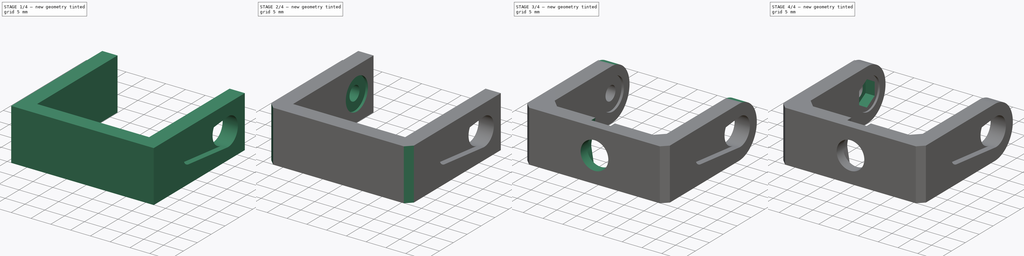
[diagram: build sequence overview — one tinted view per stage of 4, left to right]
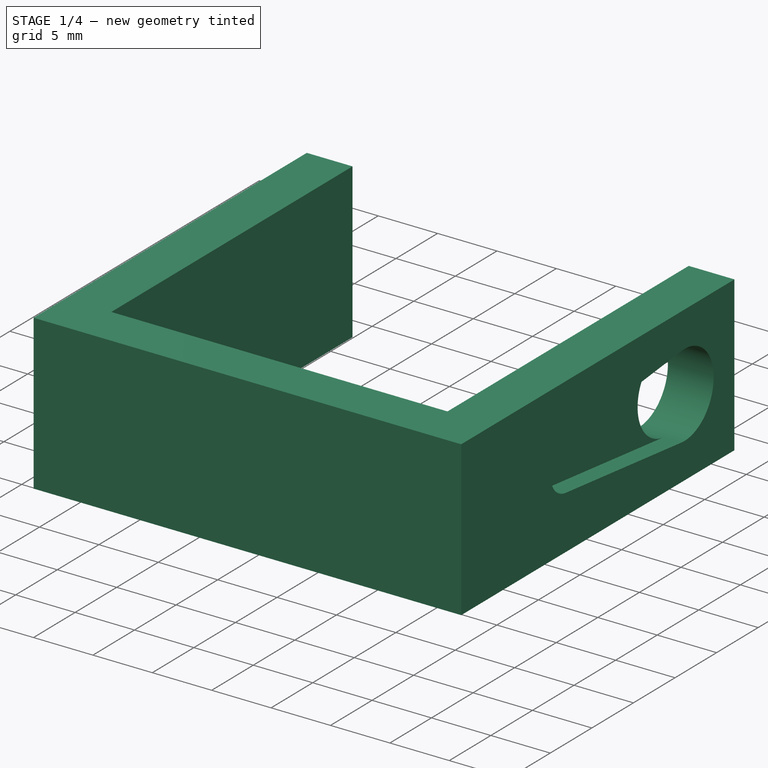
[diagram: stage 1 of 4 — iso view after this stage's code; geometry added in this stage tinted green]
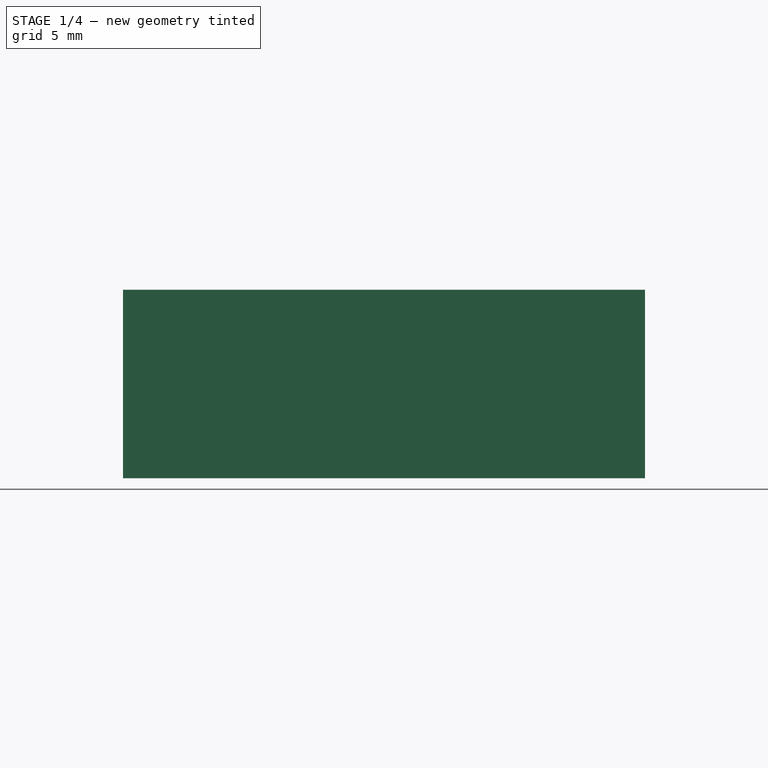
[diagram: stage 1 of 4 — front view after this stage's code; geometry added in this stage tinted green]
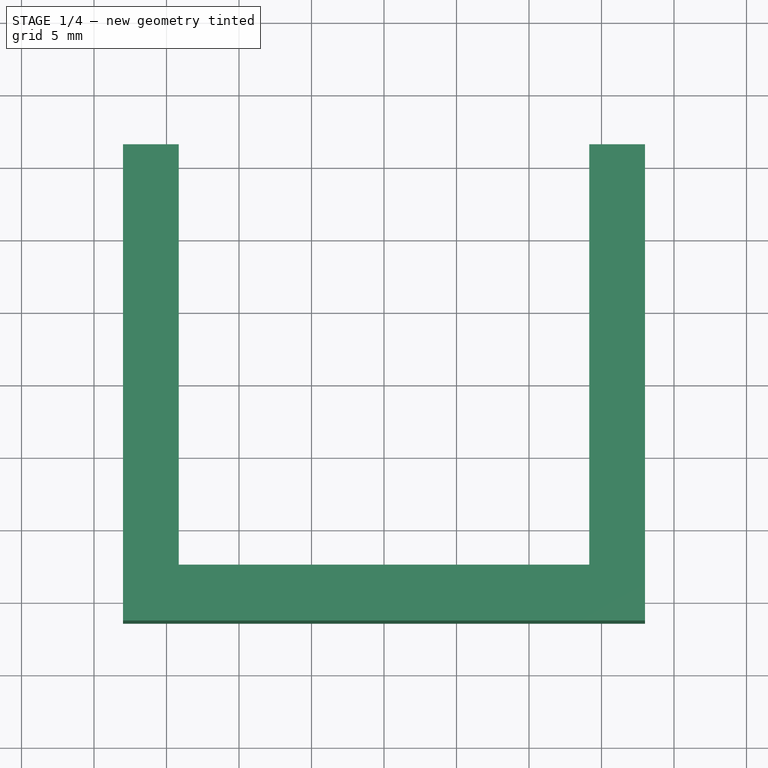
[diagram: stage 1 of 4 — top view after this stage's code; geometry added in this stage tinted green]
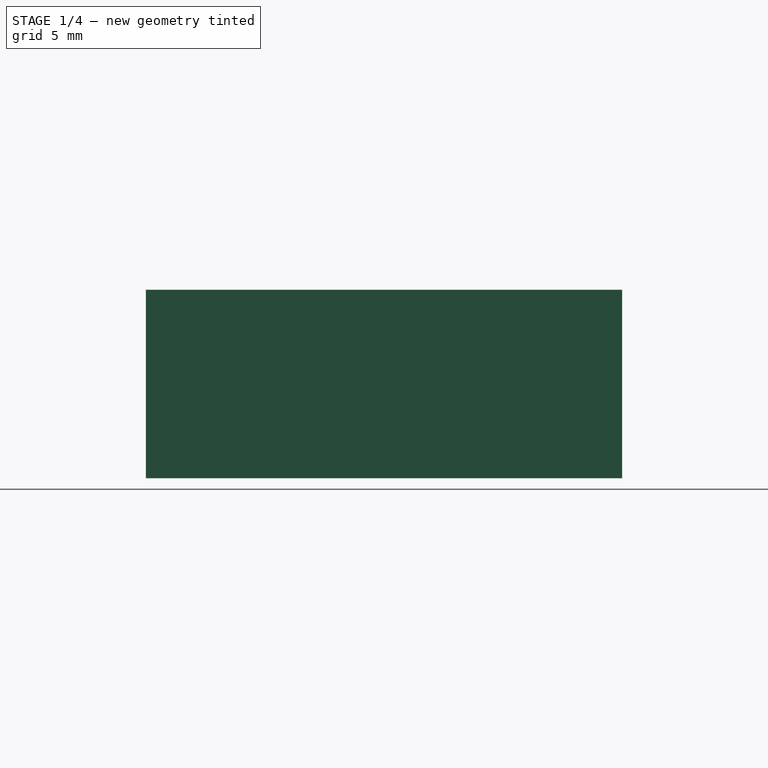
[diagram: stage 1 of 4 — right view after this stage's code; geometry added in this stage tinted green]
FCSTD DOCUMENT  (FreeCAD 0.21R33771 (Git))
Label: junta-s9g-180
License: All rights reserved
LicenseURL: https://en.wikipedia.org/wiki/All_rights_reserved
objects: Sketcher::SketchObject×8, PartDesign::Pocket×8, PartDesign::Pad×2, PartDesign::Chamfer×2, PartDesign::Fillet×1, PartDesign::Body×1
note: 35 computed .brp shape members not serialized (recipe doc carries the construction recipe); baked Part::Feature solids carry a one-line shape summary decoded from their .brp

FEATURE [Sketcher::SketchObject] Sketch
  FullyConstrained = true
  MapMode = 5
  Support = -> [XY_Plane]
  sketch-geometry (9):
    g0: LineSegment StartX=-14.15 StartY=16.425 StartZ=0 EndX=-18 EndY=16.425 EndZ=0
    g1: LineSegment StartX=-18 StartY=16.425 StartZ=0 EndX=-18 EndY=-16.425 EndZ=0
    g2: LineSegment StartX=-18 StartY=-16.425 StartZ=0 EndX=18 EndY=-16.425 EndZ=0
    g3: LineSegment StartX=18 StartY=-16.425 StartZ=0 EndX=18 EndY=16.425 EndZ=0
    g4: LineSegment StartX=18 StartY=16.425 StartZ=0 EndX=14.15 EndY=16.425 EndZ=0
    g5: LineSegment StartX=14.15 StartY=16.425 StartZ=0 EndX=14.15 EndY=-12.575 EndZ=0
    g6: LineSegment StartX=14.15 StartY=-12.575 StartZ=0 EndX=-14.15 EndY=-12.575 EndZ=0
    g7: LineSegment StartX=-14.15 StartY=-12.575 StartZ=0 EndX=-14.15 EndY=16.425 EndZ=0
    g8: LineSegment StartX=-14.15 StartY=-12.575 StartZ=0 EndX=-14.15 EndY=-16.425 EndZ=0
  constraints (25):
    c: Horizontal(g0)
    c: Coincident(g0,g1)
    c: Coincident(g1,g2)
    c: Coincident(g2,g3)
    c: Vertical(g3)
    c: Coincident(g3,g4)
    c: Horizontal(g4)
    c: Coincident(g4,g5)
    c: Vertical(g5)
    c: Coincident(g5,g6)
    c: Horizontal(g6)
    c: Coincident(g6,g7)
    c: Coincident(g7,g0)
    c: Vertical(g7)
    c: Symmetric(g1,g2,g-2)
    c: Symmetric(g0,g1,g-1)
    c: Equal(g5,g7)
    c: Equal(g0,g4)
    c: Coincident(g8,g6)
    c: PointOnObject(g8,g2)
    c: Vertical(g8)
    c: Equal(g8,g0)
    c: DistanceX(g0,g0) = 3.85
    c: DistanceY(g5,g5) = 29
    c: DistanceX(g0,g4) = 28.3
FEATURE [PartDesign::Pad] Pad
  Direction = (0,0,1)
  Length = 13
  Length2 = 10
  Profile = -> Sketch
  ReferenceAxis = -> Sketch [N_Axis]
  Type = 0
FEATURE [Sketcher::SketchObject] Sketch001
  ExternalGeometry = -> [Pad]
  FullyConstrained = false
  MapMode = 5
  Placement = pos=(18,0,0) rot=(0.57735,0.57735,0.57735;2.0944rad)
  Support = -> [Pad]
  sketch-geometry (9):
    g0: LineSegment StartX=-16.425 StartY=6.5 StartZ=0 EndX=16.425 EndY=6.5 EndZ=0
    g1: ArcOfCircle CenterX=-3.675 CenterY=6.5 CenterZ=0 NormalX=0 NormalY=0 NormalZ=1 AngleXU=0 Radius=2 StartAngle=1.67738 EndAngle=4.6058
    g2: ArcOfCircle CenterX=10.425 CenterY=6.5 CenterZ=0 NormalX=0 NormalY=0 NormalZ=1 AngleXU=0 Radius=3.5 StartAngle=4.6058 EndAngle=7.96057
    g3: LineSegment StartX=-3.88777 StartY=4.51135 StartZ=0 EndX=10.0527 EndY=3.01986 EndZ=0
    g4: LineSegment StartX=10.0527 StartY=9.98014 StartZ=0 EndX=-3.88777 EndY=8.48865 EndZ=0
    g5: LineSegment StartX=-5.675 StartY=10 StartZ=0 EndX=13.925 EndY=10 EndZ=0
    g6: LineSegment StartX=13.925 StartY=10 StartZ=0 EndX=13.925 EndY=3.0031 EndZ=0
    g7: LineSegment StartX=13.925 StartY=3.0031 StartZ=0 EndX=-5.675 EndY=2.98574 EndZ=0
    g8: LineSegment StartX=-5.675 StartY=2.98574 StartZ=0 EndX=-5.675 EndY=10 EndZ=0
  constraints (24):
    c: Symmetric(g-3,g-3,g0)
    c: PointOnObject(g0,g-3)
    c: PointOnObject(g0,g-4)
    c: PointOnObject(g2,g0)
    c: PointOnObject(g1,g0)
    c: Radius(g1) = 2
    c: Tangent(g3,g2) = -1.5708
    c: Tangent(g4,g2) = -1.5708
    c: Radius(g2) = 3.5
    c: Coincident(g5,g6)
    c: Coincident(g6,g7)
    c: Coincident(g7,g8)
    c: Coincident(g8,g5)
    c: Horizontal(g5)
    c: Vertical(g6)
    c: Vertical(g8)
    c: Tangent(g6,g2)
    c: Tangent(g1,g8)
    c: DistanceX(g5,g5) = 19.6
    c: Tangent(g3,g1) = -1.5708
    c: Tangent(g1,g4) = -1.5708
    c: Tangent(g5,g2)
    c: Tangent(g7,g2)
    c: DistanceX(g5,g-5) = 2.5
FEATURE [PartDesign::Pocket] Pocket
  BaseFeature = -> Pad
  Direction = (-1,0,0)
  Length = 1.5
  Length2 = 5
  Profile = -> Sketch001
  ReferenceAxis = -> Sketch001 [N_Axis]
  Type = 0
FEATURE [Sketcher::SketchObject] Sketch002
  ExternalGeometry = -> [Pocket]
  FullyConstrained = true
  MapMode = 5
  Placement = pos=(16.5,0,0) rot=(0.57735,0.57735,0.57735;2.0944rad)
  Support = -> [Pocket]
  sketch-geometry (1):
    g0: Circle CenterX=10.425 CenterY=6.5 CenterZ=0 NormalX=0 NormalY=0 NormalZ=1 AngleXU=0 Radius=3.5
  constraints (2):
    c: Coincident(g0,g-3)
    c: Equal(g-3,g0)
FEATURE [PartDesign::Pocket] Pocket001
  BaseFeature = -> Pocket
  Direction = (-1,0,0)
  Length = 0
  Length2 = 5
  Profile = -> Sketch002
  ReferenceAxis = -> Sketch002 [N_Axis]
  Type = 3
  UpToFace = -> Pocket [Face10]
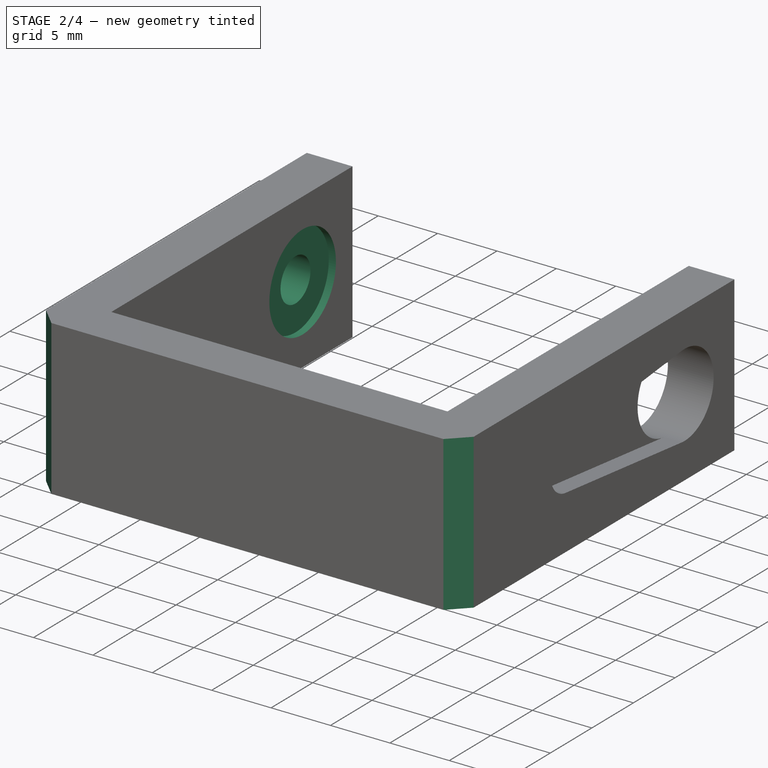
[diagram: stage 2 of 4 — iso view after this stage's code; geometry added in this stage tinted green]
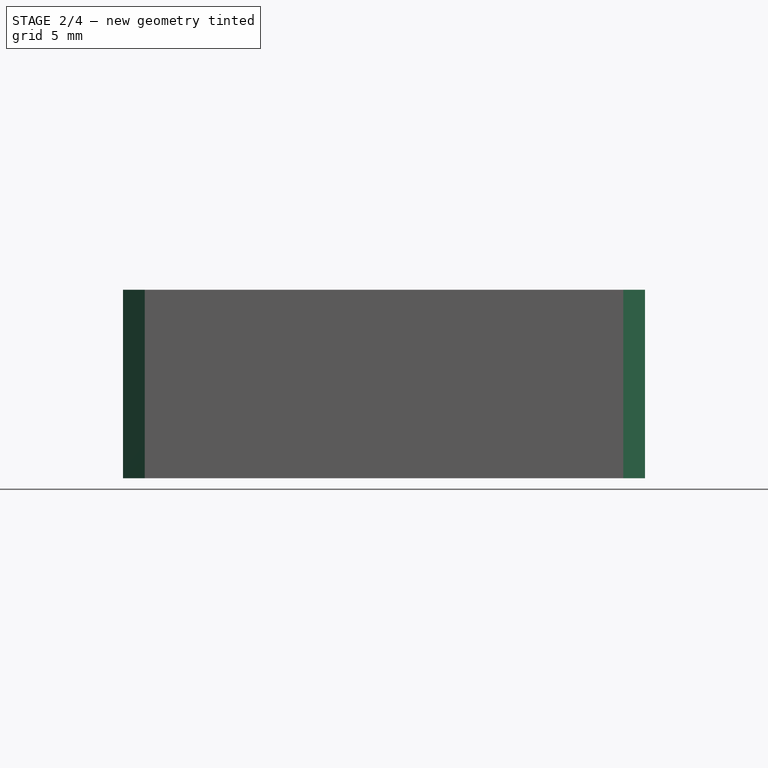
[diagram: stage 2 of 4 — front view after this stage's code; geometry added in this stage tinted green]
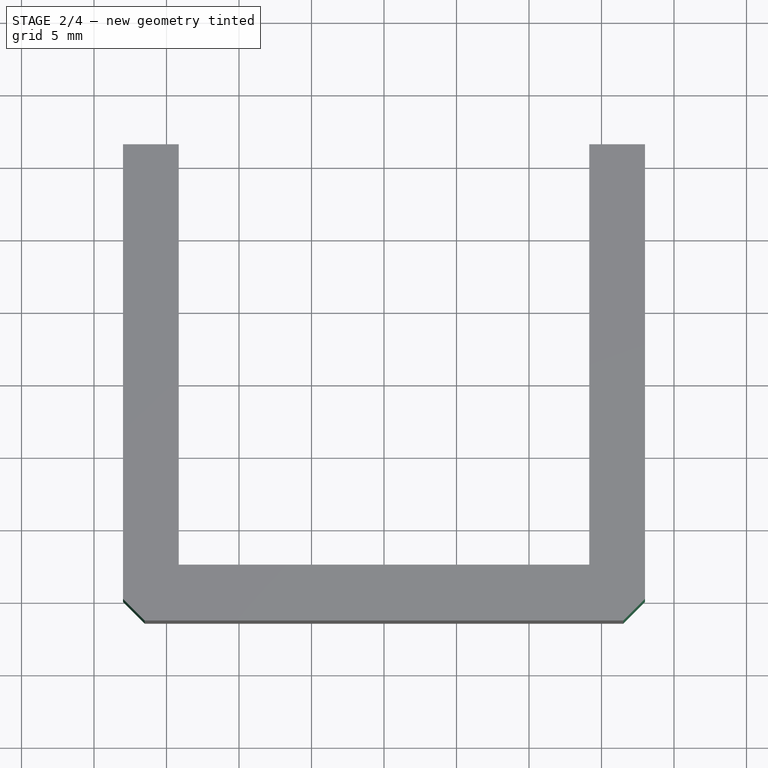
[diagram: stage 2 of 4 — top view after this stage's code; geometry added in this stage tinted green]
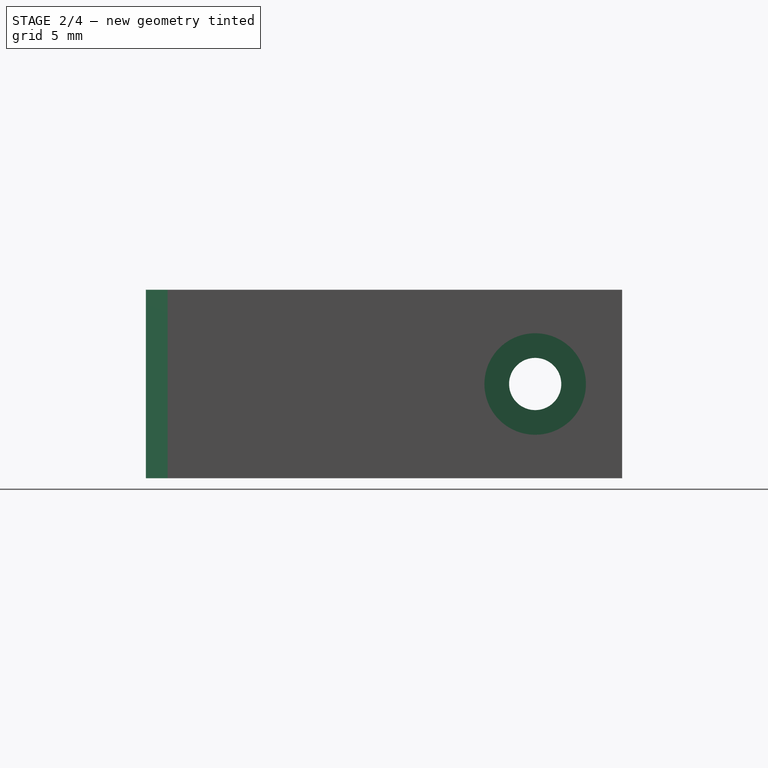
[diagram: stage 2 of 4 — right view after this stage's code; geometry added in this stage tinted green]
FEATURE [Sketcher::SketchObject] Sketch003
  ExternalGeometry = -> [Pocket001]
  FullyConstrained = true
  MapMode = 5
  Placement = pos=(-14.15,0,0) rot=(0.57735,0.57735,0.57735;2.0944rad)
  Support = -> [Pocket001]
  sketch-geometry (1):
    g0: Circle CenterX=10.425 CenterY=6.5 CenterZ=0 NormalX=0 NormalY=0 NormalZ=1 AngleXU=0 Radius=4
  constraints (2):
    c: Coincident(g0,g-3)
    c: Diameter(g0) = 8
FEATURE [PartDesign::Pocket] Pocket002
  BaseFeature = -> Pocket001
  Direction = (-1,0,0)
  Length = 0.6
  Length2 = 5
  Profile = -> Sketch003
  ReferenceAxis = -> Sketch003 [N_Axis]
  Type = 0
FEATURE [Sketcher::SketchObject] Sketch004
  ExternalGeometry = -> [Pocket002]
  FullyConstrained = true
  MapMode = 5
  Placement = pos=(-14.75,0,0) rot=(0.57735,0.57735,0.57735;2.0944rad)
  Support = -> [Pocket002]
  sketch-geometry (1):
    g0: Circle CenterX=10.425 CenterY=6.5 CenterZ=0 NormalX=0 NormalY=0 NormalZ=1 AngleXU=0 Radius=1.8
  constraints (2):
    c: Coincident(g0,g-3)
    c: Diameter(g0) = 3.6
FEATURE [PartDesign::Pocket] Pocket003
  BaseFeature = -> Pocket002
  Direction = (-1,0,0)
  Length = 5
  Length2 = 5
  Profile = -> Sketch004
  ReferenceAxis = -> Sketch004 [N_Axis]
  Type = 1
FEATURE [PartDesign::Chamfer] Chamfer
  Angle = 45
  Base = -> Pocket003 [Edge26,Edge11]
  BaseFeature = -> Pocket003
  ChamferType = 0
  FlipDirection = false
  Size = 1.5
  Size2 = 1
  SupportTransform = false
  UseAllEdges = false
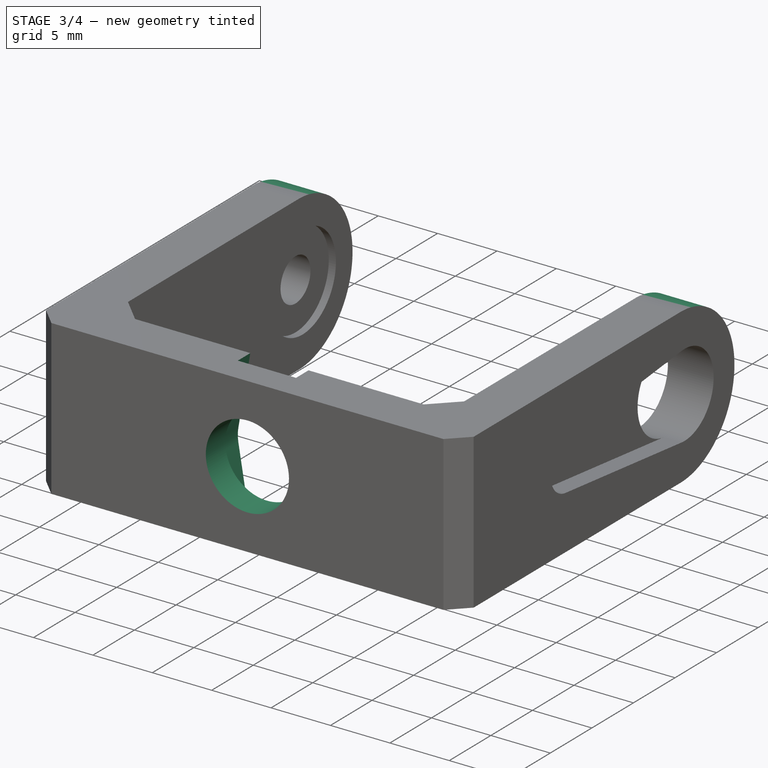
[diagram: stage 3 of 4 — iso view after this stage's code; geometry added in this stage tinted green]
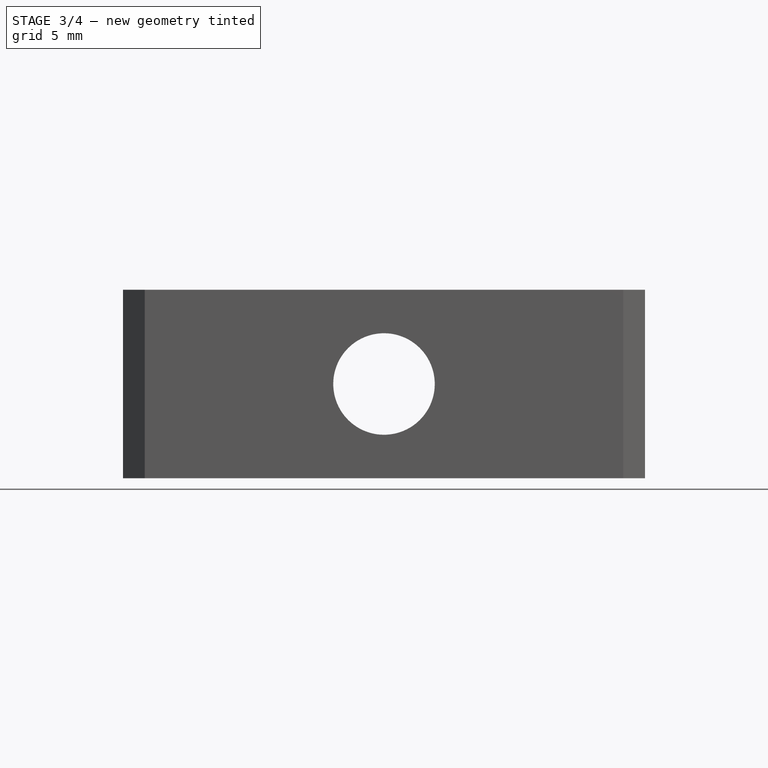
[diagram: stage 3 of 4 — front view after this stage's code; geometry added in this stage tinted green]
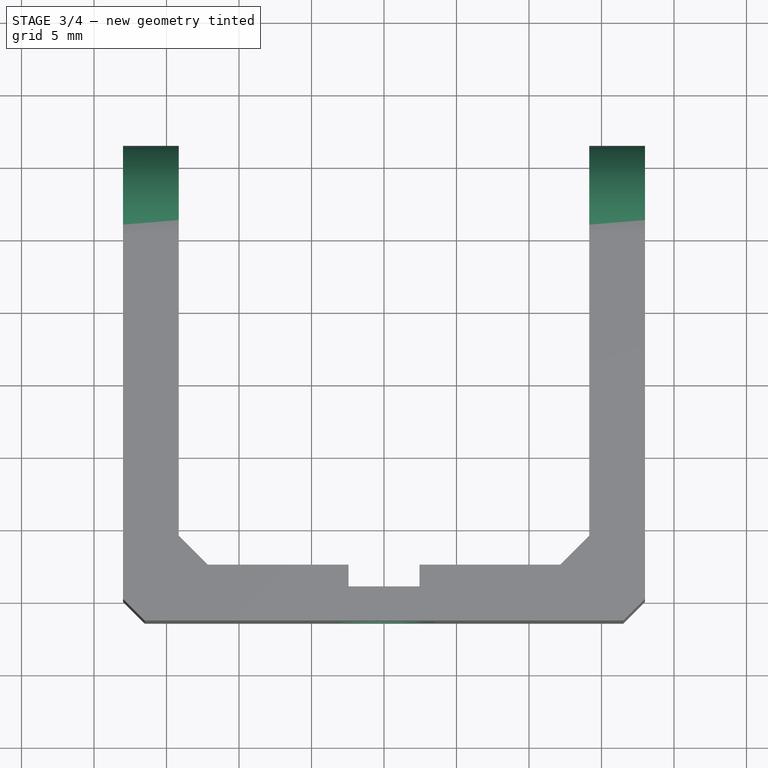
[diagram: stage 3 of 4 — top view after this stage's code; geometry added in this stage tinted green]
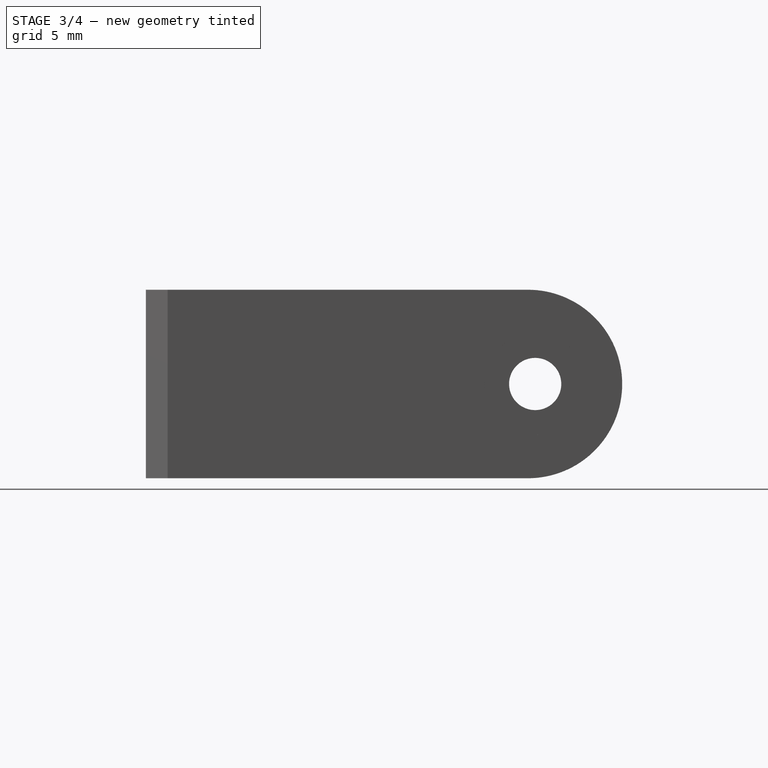
[diagram: stage 3 of 4 — right view after this stage's code; geometry added in this stage tinted green]
FEATURE [PartDesign::Chamfer] Chamfer001
  Angle = 45
  Base = -> Chamfer [Edge29,Edge32]
  BaseFeature = -> Chamfer
  ChamferType = 0
  FlipDirection = false
  Size = 2
  Size2 = 1
  SupportTransform = false
  UseAllEdges = false
FEATURE [PartDesign::Fillet] Fillet
  Base = -> Chamfer001 [Edge10,Edge36,Edge20,Edge3]
  BaseFeature = -> Chamfer001
  Radius = 6.499
  SupportTransform = false
  UseAllEdges = false
FEATURE [Sketcher::SketchObject] Sketch005
  ExternalGeometry = -> [Fillet]
  FullyConstrained = true
  MapMode = 5
  Placement = pos=(0,-12.575,0) rot=(0,0.707107,0.707107;3.14159rad)
  Support = -> [Fillet]
  sketch-geometry (18):
    g0: Circle CenterX=0 CenterY=6.5 CenterZ=0 NormalX=0 NormalY=0 NormalZ=1 AngleXU=0 Radius=3.5
    g1: LineSegment StartX=0.986013 StartY=-8.66667 StartZ=0 EndX=3.45105 EndY=5.91667 EndZ=0
    g2: LineSegment StartX=-3.45105 StartY=5.91667 StartZ=0 EndX=-0.986014 EndY=-8.66666 EndZ=0
    g3: LineSegment StartX=0.986013 StartY=21.6667 StartZ=0 EndX=3.45105 EndY=7.08333 EndZ=0
    g4: LineSegment StartX=-0.986013 StartY=21.6667 StartZ=0 EndX=-3.45105 EndY=7.08333 EndZ=0
    g5: ArcOfCircle CenterX=0 CenterY=21.5 CenterZ=0 NormalX=0 NormalY=0 NormalZ=1 AngleXU=0 Radius=1 StartAngle=0.167447 EndAngle=2.97414
    g6: ArcOfCircle CenterX=0 CenterY=-8.5 CenterZ=0 NormalX=0 NormalY=0 NormalZ=1 AngleXU=0 Radius=1 StartAngle=3.30904 EndAngle=6.11574
    g7: ArcOfCircle CenterX=-1e-16 CenterY=6.5 CenterZ=0 NormalX=0 NormalY=0 NormalZ=1 AngleXU=0 Radius=3.5 StartAngle=6.11574 EndAngle=6.45063
    g8: ArcOfCircle CenterX=2e-16 CenterY=6.5 CenterZ=0 NormalX=0 NormalY=0 NormalZ=1 AngleXU=0 Radius=3.5 StartAngle=2.97414 EndAngle=3.30904
    g9: Circle CenterX=0 CenterY=21.5 CenterZ=0 NormalX=0 NormalY=0 NormalZ=1 AngleXU=0 Radius=1
    g10: Circle CenterX=0 CenterY=-8.5 CenterZ=0 NormalX=0 NormalY=0 NormalZ=1 AngleXU=0 Radius=1
    g11: LineSegment StartX=-3.5 StartY=22.5 StartZ=0 EndX=3.5 EndY=22.5 EndZ=0
    g12: LineSegment StartX=3.5 StartY=22.5 StartZ=0 EndX=3.5 EndY=3 EndZ=0
    g13: LineSegment StartX=3.5 StartY=3 StartZ=0 EndX=-3.5 EndY=3 EndZ=0
    g14: LineSegment StartX=-3.5 StartY=3 StartZ=0 EndX=-3.5 EndY=22.5 EndZ=0
    g15: LineSegment StartX=0 StartY=21.5 StartZ=0 EndX=-1e-16 EndY=6.5 EndZ=0
    g16: LineSegment StartX=-1e-16 StartY=6.5 StartZ=0 EndX=0 EndY=-8.5 EndZ=0
    g17: LineSegment StartX=-12.15 StartY=6.5 StartZ=0 EndX=12.15 EndY=6.5 EndZ=0
  constraints (51):
    c: DistanceX(g-3,g-4) = 24.3
    c: PointOnObject(g0,g-2)
    c: Diameter(g0) = 7
    c: Tangent(g2,g0) = -1.5708
    c: Tangent(g1,g0) = -1.5708
    c: Tangent(g4,g0) = -1.5708
    c: Tangent(g3,g0) = 1.5708
    c: Coincident(g5,g4)
    c: Coincident(g5,g3)
    c: Coincident(g6,g1)
    c: Coincident(g6,g2)
    c: Coincident(g7,g1)
    c: Coincident(g7,g3)
    c: Equal(g7,g0)
    c: Coincident(g8,g4)
    c: Coincident(g8,g2)
    c: Equal(g8,g0)
    c: PointOnObject(g5,g-2)
    c: PointOnObject(g6,g-2)
    c: Equal(g6,g5)
    c: Coincident(g9,g5)
    c: Equal(g10,g6)
    c: Equal(g5,g9)
    c: Coincident(g6,g10)
    c: Diameter(g10) = 2
    c: Tangent(g9,g4)
    c: Tangent(g3,g9)
    c: Tangent(g2,g10)
    c: Tangent(g1,g10)
    c: Coincident(g11,g12)
    c: Coincident(g12,g13)
    c: Coincident(g13,g14)
    c: Coincident(g14,g11)
    c: Horizontal(g11)
    c: Horizontal(g13)
    c: Vertical(g12)
    c: Vertical(g14)
    c: Tangent(g13,g0)
    c: Tangent(g5,g11)
    c: Tangent(g8,g14)
    c: Tangent(g12,g7)
    c: DistanceY(g12,g12) = 19.5
    c: Coincident(g15,g5)
    c: Coincident(g16,g15)
    c: Coincident(g16,g6)
    c: Equal(g16,g15)
    c: Coincident(g15,g7)
    c: Symmetric(g-4,g-4,g17)
    c: PointOnObject(g17,g-4)
    c: PointOnObject(g17,g-3)
    c: PointOnObject(g7,g17)
FEATURE [PartDesign::Pocket] Pocket004
  BaseFeature = -> Fillet
  Direction = (0,-1,2e-16)
  Length = 1.5
  Length2 = 5
  Profile = -> Sketch005
  ReferenceAxis = -> Sketch005 [N_Axis]
  Type = 0
FEATURE [Sketcher::SketchObject] Sketch006
  ExternalGeometry = -> [Pocket004]
  FullyConstrained = true
  MapMode = 5
  Placement = pos=(0,-14.075,3.3e-15) rot=(0,0.707107,0.707107;3.14159rad)
  Support = -> [Pocket004]
  sketch-geometry (1):
    g0: Circle CenterX=0 CenterY=6.5 CenterZ=0 NormalX=0 NormalY=0 NormalZ=1 AngleXU=0 Radius=3.5
  constraints (2):
    c: Coincident(g0,g-4)
    c: Equal(g0,g-4)
FEATURE [PartDesign::Pocket] Pocket005
  BaseFeature = -> Pocket004
  Direction = (0,-1,2e-16)
  Length = 5
  Length2 = 5
  Profile = -> Sketch006
  ReferenceAxis = -> Sketch006 [N_Axis]
  Type = 1
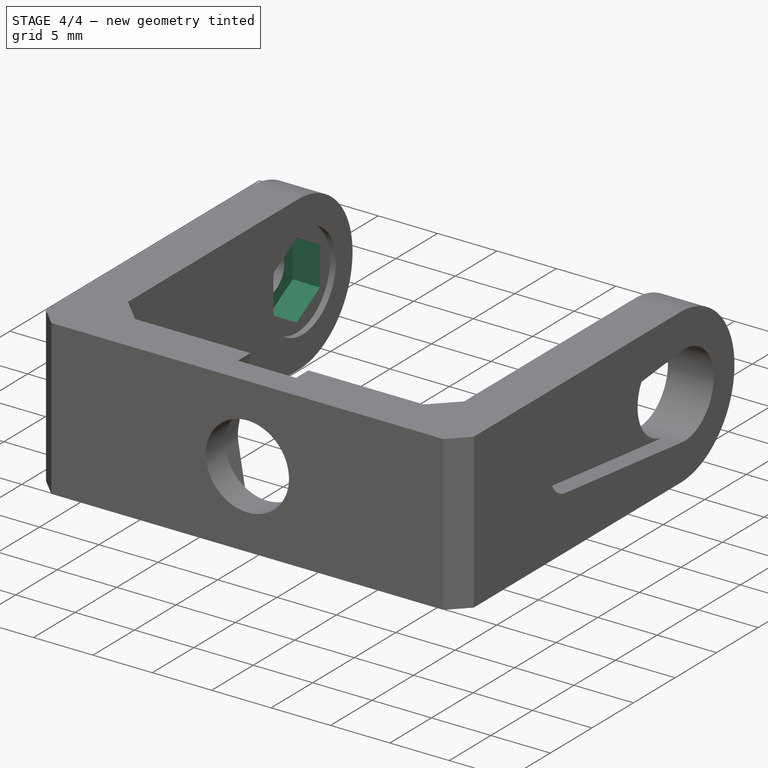
[diagram: stage 4 of 4 — iso view after this stage's code; geometry added in this stage tinted green]
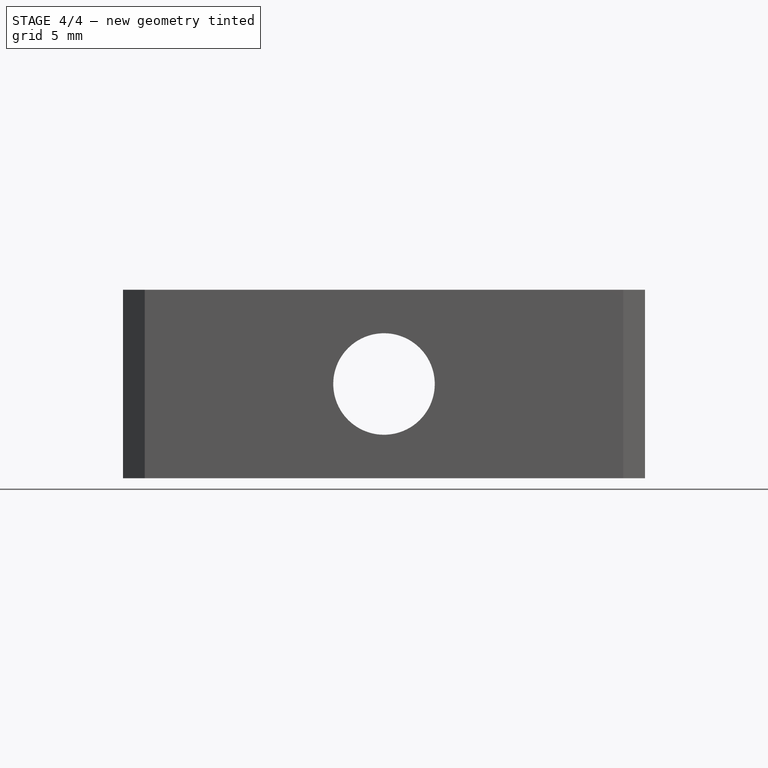
[diagram: stage 4 of 4 — front view after this stage's code; geometry added in this stage tinted green]
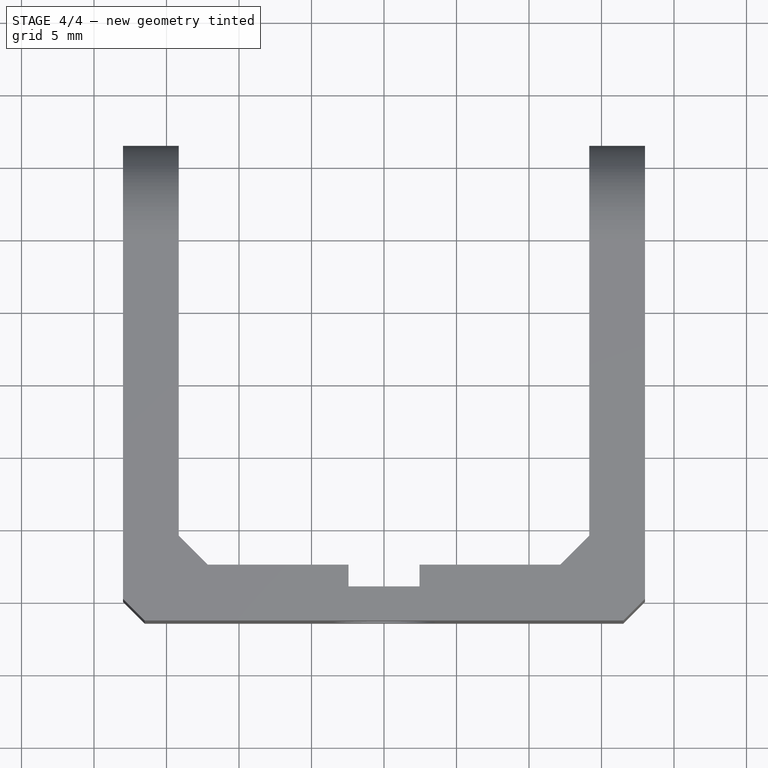
[diagram: stage 4 of 4 — top view after this stage's code; geometry added in this stage tinted green]
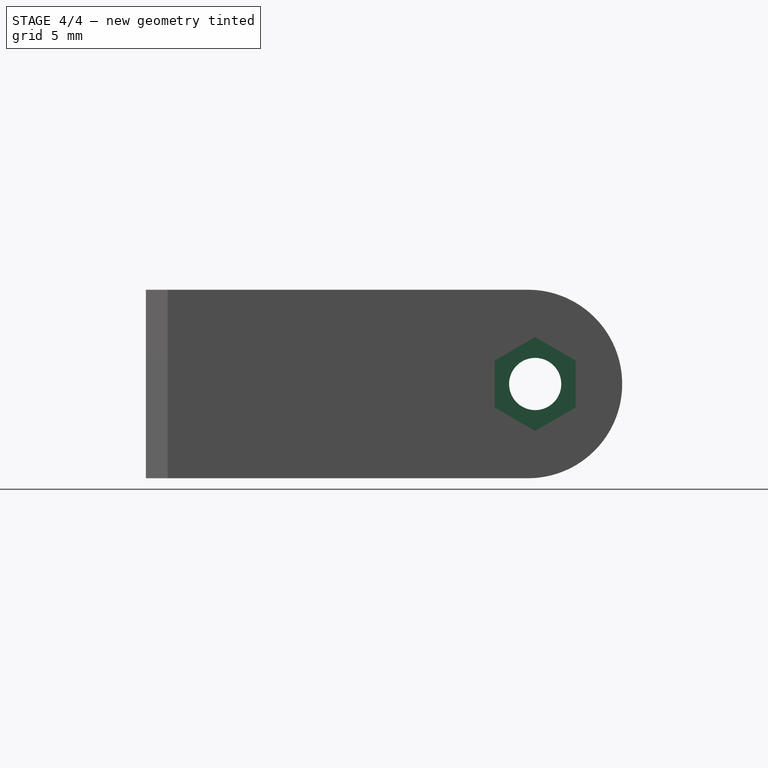
[diagram: stage 4 of 4 — right view after this stage's code; geometry added in this stage tinted green]
FEATURE [PartDesign::Pad] Pad001
  BaseFeature = -> Pocket005
  Direction = (1,0,0)
  Length = 10
  Length2 = 10
  Profile = -> Pocket005 [Face36]
  Type = 3
  UpToFace = -> Pocket005 [Face2]
FEATURE [PartDesign::Pocket] Pocket006
  BaseFeature = -> Pad001
  Direction = (-1,0,0)
  Length = 0.5
  Length2 = 5
  Profile = -> Pad001 [Face21]
  Type = 0
FEATURE [Sketcher::SketchObject] Sketch007
  ExternalGeometry = -> [Pocket006]
  FullyConstrained = true
  MapMode = 5
  Placement = pos=(-14.65,0,0) rot=(0.57735,0.57735,0.57735;2.0944rad)
  Support = -> [Pocket006]
  sketch-geometry (7):
    g0: LineSegment StartX=10.425 StartY=3.26684 StartZ=0 EndX=13.225 EndY=4.88342 EndZ=0
    g1: LineSegment StartX=13.225 StartY=4.88342 StartZ=0 EndX=13.225 EndY=8.11658 EndZ=0
    g2: LineSegment StartX=13.225 StartY=8.11658 StartZ=0 EndX=10.425 EndY=9.73316 EndZ=0
    g3: LineSegment StartX=10.425 StartY=9.73316 StartZ=0 EndX=7.625 EndY=8.11658 EndZ=0
    g4: LineSegment StartX=7.625 StartY=8.11658 StartZ=0 EndX=7.625 EndY=4.88342 EndZ=0
    g5: LineSegment StartX=7.625 StartY=4.88342 StartZ=0 EndX=10.425 EndY=3.26684 EndZ=0
    g6: Circle CenterX=10.425 CenterY=6.5 CenterZ=0 NormalX=0 NormalY=0 NormalZ=1 AngleXU=0 Radius=3.23316
  constraints (16):
    c: Coincident(g0,g1)
    c: Coincident(g1,g2)
    c: Coincident(g2,g3)
    c: Coincident(g3,g4)
    c: Coincident(g4,g5)
    c: Coincident(g5,g0)
    c: Equal(g0, g1-g5) x5
    c: PointOnObject(g0,g6)
    c: PointOnObject(g1,g6)
    c: PointOnObject(g2,g6)
    c: PointOnObject(g3,g6)
    c: PointOnObject(g4,g6)
    c: PointOnObject(g5,g6)
    c: Coincident(g6,g-3)
    c: Vertical(g4)
    c: DistanceX(g3,g1) = 5.6
FEATURE [PartDesign::Pocket] Pocket007
  BaseFeature = -> Pocket006
  Direction = (-1,0,0)
  Length = 2.3
  Length2 = 5
  Profile = -> Sketch007
  ReferenceAxis = -> Sketch007 [N_Axis]
  Type = 0
FEATURE [PartDesign::Body] Body
  Group = -> [Sketch,Pad,Sketch001,Pocket,Sketch002,Pocket001,Sketch003,Pocket002,Sketch004,Pocket003,Chamfer,Chamfer001,Fillet,Sketch005,Pocket004,Sketch006,Pocket005,Pad001,Pocket006,Sketch007,Pocket007]
  Origin = -> Origin
  Tip = -> Pocket007
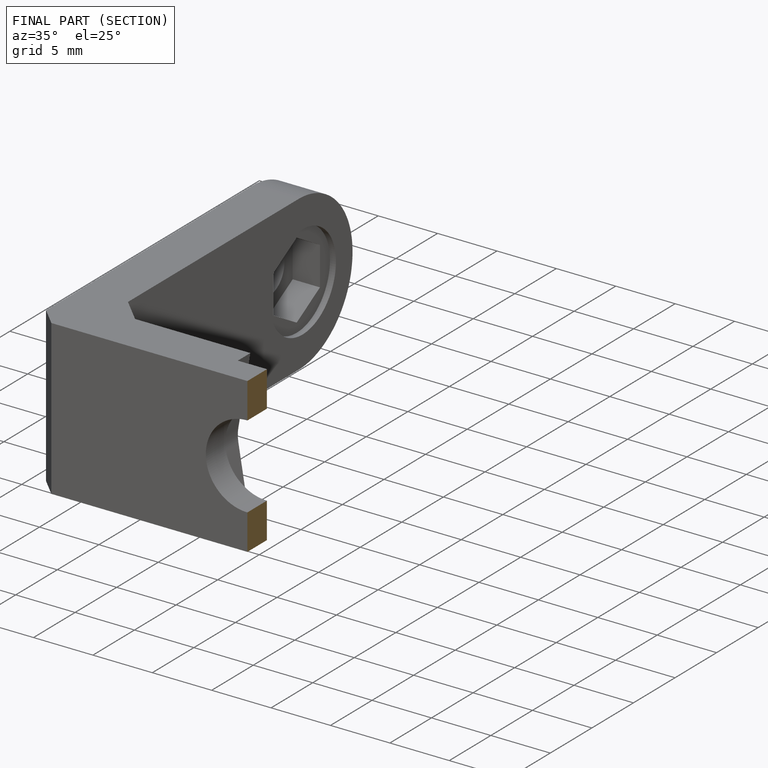
[diagram: finished part — half-section view (interior)]
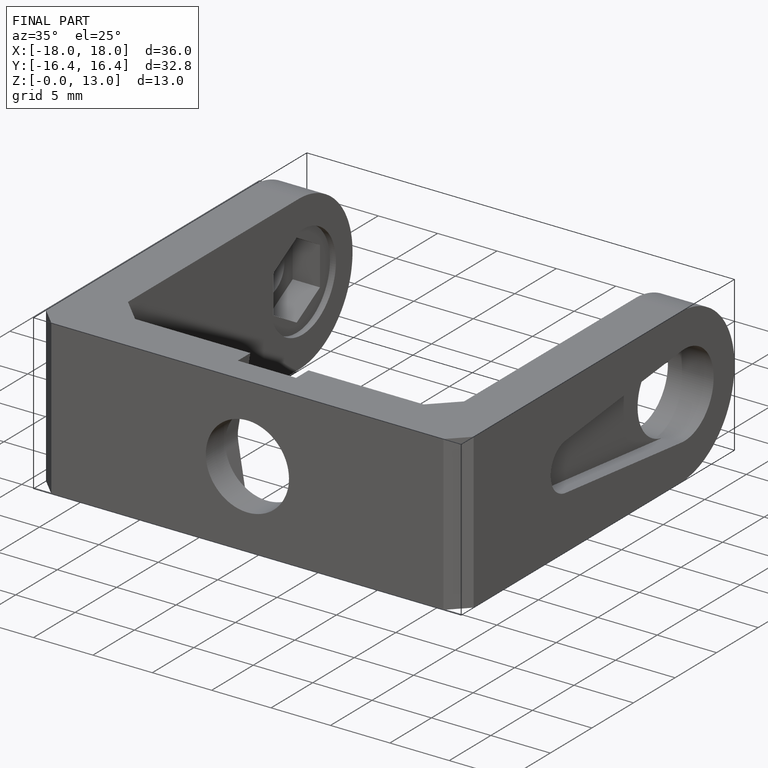
[diagram: finished part — iso view with bounding-box wireframe]
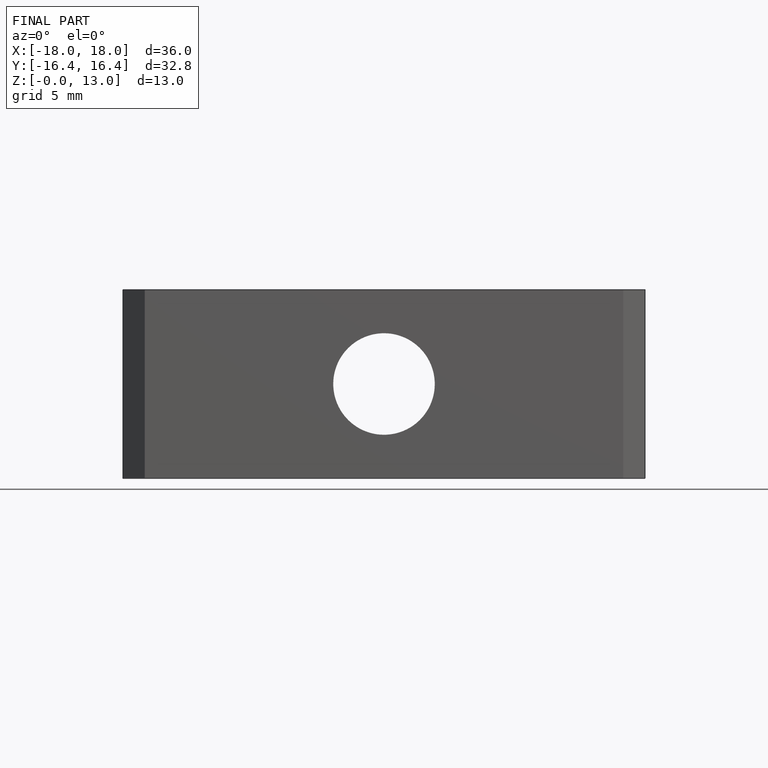
[diagram: finished part — front view with bounding-box wireframe]
